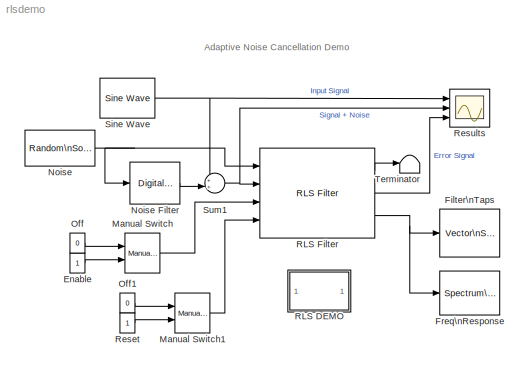
MODEL rlsdemo
KIND model
CONFIG AbsTol = 1e-6
CONFIG FixedStep = auto
CONFIG MaxStep = auto
CONFIG MinStep = auto
CONFIG RelTol = 1e-3
CONFIG Solver = FixedStepDiscrete
CONFIG SolverMode = Auto
CONFIG StartTime = 0
CONFIG StopTime = inf
BLOCK [Constant] Enable
  OutDataTypeMode = boolean
  ShowAdditionalParam = on
BLOCK [Reference] Filter\nTaps  REF=dspsnks4/Vector\nScope
  AxisGrid = on
  AxisLegend = off
  AxisProperties = on
  AxisZoom = on
  DisplayProperties = off
  Domain = User-defined
  FigPos = [31 183 329 270]
  FrameNumber = on
  HorizSpan = 1
  InheritXIncr = on
  LineColors = [0 0 1]
  LineDisables = on
  LineMarkers = .
  LineProperties = off
  LineStyles = :
  Memory = off
  OpenScopeAtSimStart = on
  OpenScopeImmediately = off
  Ports = [1]
  ScopeProperties = off
  SourceBlock = dspsnks4/Vector\nScope
  SourceType = Vector Scope
  XIncr = 1
  XLabel = Samples
  XRange = [0...Fs/2]
  XUnits = Hertz
  YLabel = Filter Coefficients
  YMax = 0.6
  YMin = -0.2
  YUnits = dB
BLOCK [Reference] Freq\nResponse  REF=dspsnks4/Spectrum\nScope
  AxisGrid = on
  AxisLegend = off
  AxisProperties = on
  AxisZoom = on
  BufferSize = 128
  DisplayProperties = off
  Domain = Frequency
  FFTlength = 256
  FigPos = [369 182 378 270]
  FrameNumber = on
  HorizSpan = 1
  InheritXIncr = on
  LineColors = [0 0 1]
  LineDisables = on
  LineProperties = off
  LineStyles = -
  Memory = off
  OpenScopeAtSimStart = on
  OpenScopeImmediately = off
  Overlap = 64
  Ports = [1]
  ScopeProperties = off
  SourceBlock = dspsnks4/Spectrum\nScope
  SourceType = Spectrum Scope
  UseBuffer = off
  XIncr = 1
  XLabel = Samples
  XRange = [0...Fs/2]
  XUnits = Hertz
  YLabel = Magnitude, dB
  YMax = 0
  YMin = -60
  YUnits = dB
  inpFftLenInherit = on
  numAvg = 2
BLOCK [Reference] Manual Switch  REF=simulink/Signal\nRouting/Manual Switch
  Ports = [2, 1]
  SourceBlock = simulink/Signal\nRouting/Manual Switch
  SourceType = Manual Switch
  action = 0
  sw = 0
BLOCK [Reference] Manual Switch1  REF=simulink/Signal\nRouting/Manual Switch
  Ports = [2, 1]
  SourceBlock = simulink/Signal\nRouting/Manual Switch
  SourceType = Manual Switch
  action = 0
  sw = 1
BLOCK [Reference] Noise  REF=dspsrcs4/Random\nSource
  CltLength = 12
  DataType = Double
  Diagnostics = AllowInheritedTsInSrc
  Inherit = off
  Max = 1
  Mean = 0
  Min = 0
  NormMethod = Ziggurat
  OutComplex = Real
  Ports = [0, 1]
  RepMode = Specify seed
  SampFrame = 1
  SampMode = Discrete
  SampTime = 1
  Seed = [23341]
  SourceBlock = dspsrcs4/Random\nSource
  SourceType = Random Source
  SrcType = Gaussian
  Var = 1
BLOCK [Reference] Noise Filter  REF=dsparch4/Digital\nFilter Design
  Ports = [1, 1]
  SourceBlock = dsparch4/Digital\nFilter Design
  UserData = DataTag0
  UserDataPersistent = on
BLOCK [Constant] Off
  OutDataTypeMode = boolean
  ShowAdditionalParam = on
  Value = 0
BLOCK [Constant] Off1
  OutDataTypeMode = boolean
  ShowAdditionalParam = on
  Value = 0
BLOCK [SubSystem] RLS DEMO
  MaskDisplay = disp('Info')
  MaskIconFrame = on
  MaskIconOpaque = on
  MaskIconRotate = none
  MaskIconUnits = autoscale
  Ports = []
  TreatAsAtomicUnit = off
BLOCK [Reference] RLS Filter  REF=dspadpt3/RLS Filter
  Adapt = on
  L = 32
  Ports = [4, 3]
  SourceBlock = dspadpt3/RLS Filter
  SourceType = RLS Adaptive filter
  addnparflag = on
  delta = 0.1
  ic = 0
  lambda = 1.0
  lambdaflag = Dialog
  resetflag = Either edge
  weights = on
BLOCK [Constant] Reset
  OutDataTypeMode = boolean
  ShowAdditionalParam = on
BLOCK [Scope] Results
  DataFormat = Array
  NumInputPorts = 3
  Ports = [3]
  TimeRange = 128
  YMax = 2~2~2
  YMin = -2~-2~-2
BLOCK [Reference] Sine Wave  REF=dspsrcs4/Sine Wave
  Amplitude = 1
  CompMethod = Trigonometric fcn
  Frequency = 0.055
  OutComplex = Real
  Phase = 0
  Ports = [0, 1]
  ResetState = Restart at time zero
  SampleMode = Discrete
  SampleTime = 1
  SamplesPerFrame = 1
  SourceBlock = dspsrcs4/Sine Wave
  SourceType = Sine Wave
  TableSize = Speed
  additionalParams = off
  allowOverrides = on
  dataType = double
  fracBitsMode = User-defined
  numFracBits = 14
  udDataType = sfix(16)
  wordLen = 16
BLOCK [Sum] Sum1
  IconShape = round
  Inputs = ++|
  Ports = [2, 1]
BLOCK [Terminator] Terminator
ANNOTATION (root): Adaptive Noise Cancellation Demo
ANNOTATION RLS DEMO: Adaptive Noise Cancellation using the Recursive\nLeast Squares Algorithm.\n\nThe RLS adaptive filter uses the reference signal (on\nthe \"Input\" port) and the \"Desired\" signal to automatically match the filter\nresponse in the block labeled \"Noise filter\". As it converges to\nthe correct filter, the filtered noise should be\ncompletely subtracted from the \"Signal+Noise\" signal\nand the \"Er...<+145ch>
LINE Enable:1 -> Manual Switch:2
LINE Manual Switch1:1 -> RLS Filter:4
LINE Manual Switch:1 -> RLS Filter:3
LINE Noise Filter:1 -> Sum1:2
NET Noise:1 -> Noise Filter:1, RLS Filter:1
LINE Off1:1 -> Manual Switch1:1
LINE Off:1 -> Manual Switch:1
LINE RLS Filter:1 -> Terminator:1
LINE RLS Filter:2 -> Results:3
NET RLS Filter:3 -> Filter\nTaps:1, Freq\nResponse:1
LINE Reset:1 -> Manual Switch1:2
NET Sine Wave:1 -> Results:1, Sum1:1
NET Sum1:1 -> RLS Filter:2, Results:2
note: NET lines group one-source signal fan-out (src -> all destinations, sorted); 1:1 wires keep LINE
